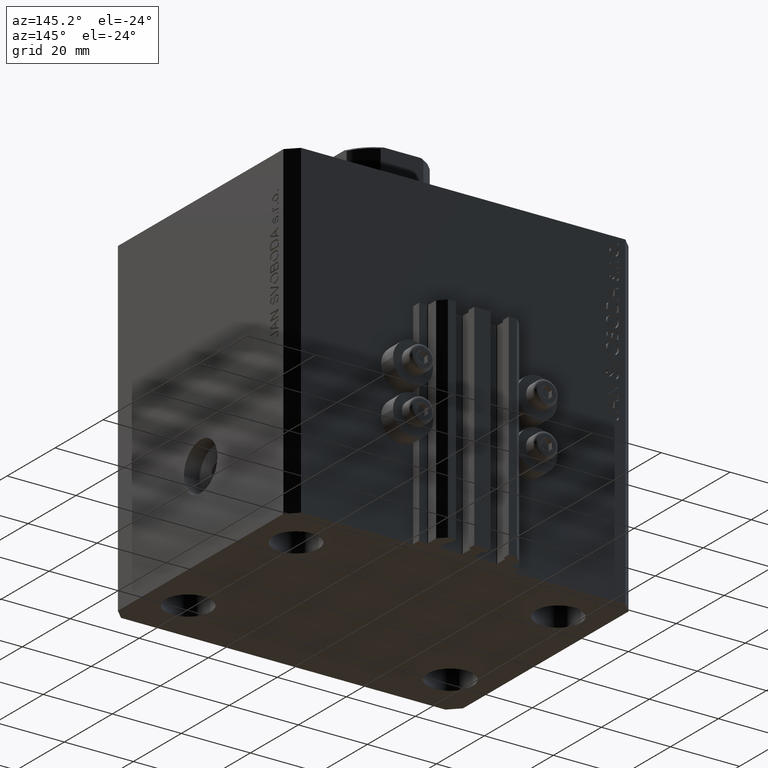
[diagram: clean part render]
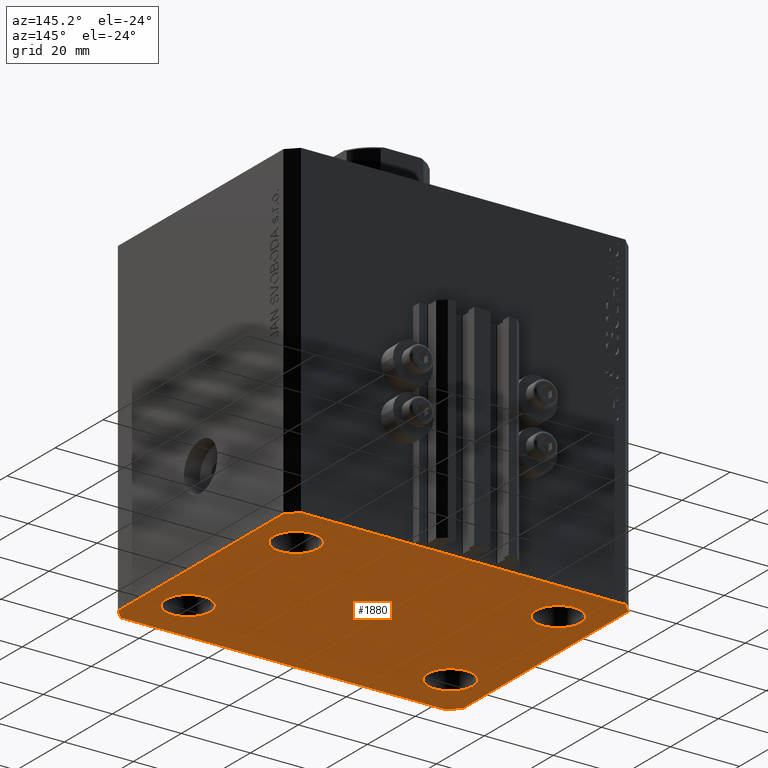
[diagram: same view with one face highlighted and labeled with its STEP entity id]
A machine part, auxiliary view. The second image highlights one B-rep face of the part: STEP entity #1880.
In plain terms, the highlighted planar face has unit normal (0, 0, 1).
Its self-contained STEP definition (entity closure, byte-faithful):
#277 = VERTEX_POINT ( 'NONE', #5666 ) ;
#306 = FACE_OUTER_BOUND ( 'NONE', #1822, .T. ) ;
#385 = ORIENTED_EDGE ( 'NONE', *, *, #19222, .F. ) ;
#866 = CARTESIAN_POINT ( 'NONE',  ( 31.49999999999999289, -22.50000000000000000, -95.00000000000000000 ) ) ;
#1362 = EDGE_CURVE ( 'NONE', #11967, #33250, #37895, .T. ) ;
#1516 = LINE ( 'NONE', #45219, #36819 ) ;
#1822 = EDGE_LOOP ( 'NONE', ( #35923, #30641, #385, #27761, #28299, #11859, #18577, #31644 ) ) ;
#1880 = ADVANCED_FACE ( 'NONE', ( #40639, #22488, #36366, #3647, #306 ), #18205, .F. ) ;
#2292 = EDGE_CURVE ( 'NONE', #8838, #34498, #10611, .T. ) ;
#2366 = CARTESIAN_POINT ( 'NONE',  ( 50.00000000000051870, 34.49999999999995026, -95.00000000000000000 ) ) ;
#2794 = VERTEX_POINT ( 'NONE', #44704 ) ;
#2886 = CARTESIAN_POINT ( 'NONE',  ( -37.99999999999999289, -22.50000000000000000, -95.00000000000000000 ) ) ;
#2992 = DIRECTION ( 'NONE',  ( -0.7071067811865483499, -0.7071067811865466846, 0.000000000000000000 ) ) ;
#3039 = DIRECTION ( 'NONE',  ( -0.000000000000000000, -0.000000000000000000, -1.000000000000000000 ) ) ;
#3048 = CIRCLE ( 'NONE', #25921, 6.499999999999999112 ) ;
#3288 = CARTESIAN_POINT ( 'NONE',  ( -38.00000000000000000, 22.49999999999999645, -95.00000000000000000 ) ) ;
#3647 = FACE_BOUND ( 'NONE', #22564, .T. ) ;
#5492 = CARTESIAN_POINT ( 'NONE',  ( 47.00000000000056843, 37.49999999999999289, -95.00000000000000000 ) ) ;
#5666 = CARTESIAN_POINT ( 'NONE',  ( 47.00000000000056843, 37.49999999999999289, -95.00000000000000000 ) ) ;
#5915 = DIRECTION ( 'NONE',  ( 1.000000000000000000, 0.000000000000000000, 0.000000000000000000 ) ) ;
#6106 = DIRECTION ( 'NONE',  ( 1.000000000000000000, -1.476360405086644309E-16, 0.000000000000000000 ) ) ;
#6157 = CIRCLE ( 'NONE', #11452, 6.499999999999999112 ) ;
#7520 = CARTESIAN_POINT ( 'NONE',  ( 44.50000000000000000, 22.49999999999998934, -95.00000000000000000 ) ) ;
#7729 = EDGE_CURVE ( 'NONE', #27242, #32108, #43282, .T. ) ;
#8126 = VECTOR ( 'NONE', #31029, 1000.000000000000000 ) ;
#8647 = DIRECTION ( 'NONE',  ( 2.011273595335428326E-16, -1.000000000000000000, 0.000000000000000000 ) ) ;
#8838 = VERTEX_POINT ( 'NONE', #39987 ) ;
#9110 = AXIS2_PLACEMENT_3D ( 'NONE', #14108, #43254, #31807 ) ;
#9820 = CIRCLE ( 'NONE', #28253, 6.499999999999999112 ) ;
#9927 = LINE ( 'NONE', #39773, #10779 ) ;
#10207 = DIRECTION ( 'NONE',  ( -0.000000000000000000, -0.000000000000000000, -1.000000000000000000 ) ) ;
#10383 = DIRECTION ( 'NONE',  ( -0.7071067811865361374, 0.7071067811865588970, 0.000000000000000000 ) ) ;
#10611 = LINE ( 'NONE', #31659, #40047 ) ;
#10640 = CARTESIAN_POINT ( 'NONE',  ( 47.00000000000000000, -37.50000000000000711, -95.00000000000000000 ) ) ;
#10779 = VECTOR ( 'NONE', #10383, 1000.000000000000114 ) ;
#10818 = VERTEX_POINT ( 'NONE', #10640 ) ;
#11091 = EDGE_CURVE ( 'NONE', #32108, #27242, #9820, .T. ) ;
#11452 = AXIS2_PLACEMENT_3D ( 'NONE', #13557, #10207, #21202 ) ;
#11859 = ORIENTED_EDGE ( 'NONE', *, *, #1362, .F. ) ;
#11967 = VERTEX_POINT ( 'NONE', #13478 ) ;
#12185 = CARTESIAN_POINT ( 'NONE',  ( -38.00000000000000000, 22.49999999999999645, -95.00000000000000000 ) ) ;
#12606 = AXIS2_PLACEMENT_3D ( 'NONE', #14849, #32777, #18677 ) ;
#13478 = CARTESIAN_POINT ( 'NONE',  ( -50.00000000000000000, -34.50000000000000000, -95.00000000000000000 ) ) ;
#13515 = VERTEX_POINT ( 'NONE', #7520 ) ;
#13557 = CARTESIAN_POINT ( 'NONE',  ( 37.99999999999999289, -22.50000000000000000, -95.00000000000000000 ) ) ;
#13565 = ORIENTED_EDGE ( 'NONE', *, *, #7729, .F. ) ;
#13768 = VERTEX_POINT ( 'NONE', #24339 ) ;
#14108 = CARTESIAN_POINT ( 'NONE',  ( 38.00000000000000000, 22.49999999999998934, -95.00000000000000000 ) ) ;
#14332 = VERTEX_POINT ( 'NONE', #20652 ) ;
#14849 = CARTESIAN_POINT ( 'NONE',  ( 0.000000000000000000, 0.000000000000000000, -95.00000000000000000 ) ) ;
#14938 = VERTEX_POINT ( 'NONE', #2366 ) ;
#15042 = EDGE_CURVE ( 'NONE', #27134, #36399, #6157, .T. ) ;
#15066 = DIRECTION ( 'NONE',  ( 1.000000000000000000, 0.000000000000000000, 0.000000000000000000 ) ) ;
#15539 = DIRECTION ( 'NONE',  ( -0.000000000000000000, -0.000000000000000000, -1.000000000000000000 ) ) ;
#15897 = ORIENTED_EDGE ( 'NONE', *, *, #11091, .F. ) ;
#16186 = EDGE_LOOP ( 'NONE', ( #37998, #23416 ) ) ;
#17227 = CARTESIAN_POINT ( 'NONE',  ( -50.00000000000001421, 34.50000000000000000, -95.00000000000000000 ) ) ;
#17301 = ORIENTED_EDGE ( 'NONE', *, *, #25370, .F. ) ;
#17898 = VECTOR ( 'NONE', #19499, 1000.000000000000114 ) ;
#18205 = PLANE ( 'NONE',  #12606 ) ;
#18526 = CARTESIAN_POINT ( 'NONE',  ( 47.00000000000000000, -37.50000000000000711, -95.00000000000000000 ) ) ;
#18577 = ORIENTED_EDGE ( 'NONE', *, *, #34326, .F. ) ;
#18677 = DIRECTION ( 'NONE',  ( 1.000000000000000000, 0.000000000000000000, -0.000000000000000000 ) ) ;
#18783 = CARTESIAN_POINT ( 'NONE',  ( -44.50000000000000000, 22.49999999999999645, -95.00000000000000000 ) ) ;
#19146 = AXIS2_PLACEMENT_3D ( 'NONE', #20215, #34794, #31198 ) ;
#19222 = EDGE_CURVE ( 'NONE', #14332, #14938, #1516, .T. ) ;
#19499 = DIRECTION ( 'NONE',  ( 0.7071067811865491270, -0.7071067811865459074, 0.000000000000000000 ) ) ;
#19813 = LINE ( 'NONE', #5492, #8126 ) ;
#20215 = CARTESIAN_POINT ( 'NONE',  ( 38.00000000000000000, 22.49999999999998934, -95.00000000000000000 ) ) ;
#20652 = CARTESIAN_POINT ( 'NONE',  ( 50.00000000000000000, -34.50000000000000711, -95.00000000000000000 ) ) ;
#20720 = VECTOR ( 'NONE', #33095, 1000.000000000000000 ) ;
#20914 = EDGE_LOOP ( 'NONE', ( #17301, #30017 ) ) ;
#21031 = DIRECTION ( 'NONE',  ( -0.000000000000000000, -0.000000000000000000, -1.000000000000000000 ) ) ;
#21202 = DIRECTION ( 'NONE',  ( 1.000000000000000000, 0.000000000000000000, 0.000000000000000000 ) ) ;
#21958 = AXIS2_PLACEMENT_3D ( 'NONE', #3288, #3039, #24549 ) ;
#22003 = EDGE_CURVE ( 'NONE', #36399, #27134, #3048, .T. ) ;
#22337 = LINE ( 'NONE', #18526, #20720 ) ;
#22488 = FACE_BOUND ( 'NONE', #26289, .T. ) ;
#22564 = EDGE_LOOP ( 'NONE', ( #15897, #13565 ) ) ;
#22889 = EDGE_CURVE ( 'NONE', #2794, #24659, #36648, .T. ) ;
#23227 = LINE ( 'NONE', #41834, #27269 ) ;
#23416 = ORIENTED_EDGE ( 'NONE', *, *, #33401, .F. ) ;
#23618 = VECTOR ( 'NONE', #6106, 1000.000000000000000 ) ;
#24339 = CARTESIAN_POINT ( 'NONE',  ( 31.50000000000000000, 22.49999999999998934, -95.00000000000000000 ) ) ;
#24501 = LINE ( 'NONE', #34787, #23618 ) ;
#24539 = CARTESIAN_POINT ( 'NONE',  ( 37.99999999999999289, -22.50000000000000000, -95.00000000000000000 ) ) ;
#24549 = DIRECTION ( 'NONE',  ( 1.000000000000000000, 0.000000000000000000, 0.000000000000000000 ) ) ;
#24659 = VERTEX_POINT ( 'NONE', #34024 ) ;
#25370 = EDGE_CURVE ( 'NONE', #13515, #13768, #32901, .T. ) ;
#25921 = AXIS2_PLACEMENT_3D ( 'NONE', #24539, #41736, #39093 ) ;
#26101 = ORIENTED_EDGE ( 'NONE', *, *, #22003, .F. ) ;
#26277 = EDGE_CURVE ( 'NONE', #14938, #277, #9927, .T. ) ;
#26289 = EDGE_LOOP ( 'NONE', ( #39535, #26101 ) ) ;
#26360 = EDGE_CURVE ( 'NONE', #10818, #14332, #22337, .T. ) ;
#27061 = DIRECTION ( 'NONE',  ( 7.441712302741091634E-15, 1.000000000000000000, 0.000000000000000000 ) ) ;
#27134 = VERTEX_POINT ( 'NONE', #32187 ) ;
#27242 = VERTEX_POINT ( 'NONE', #18783 ) ;
#27269 = VECTOR ( 'NONE', #8647, 1000.000000000000000 ) ;
#27761 = ORIENTED_EDGE ( 'NONE', *, *, #26360, .F. ) ;
#27835 = CARTESIAN_POINT ( 'NONE',  ( -50.00000000000000000, -34.50000000000000000, -95.00000000000000000 ) ) ;
#28253 = AXIS2_PLACEMENT_3D ( 'NONE', #12185, #15539, #15066 ) ;
#28299 = ORIENTED_EDGE ( 'NONE', *, *, #40827, .F. ) ;
#29725 = CIRCLE ( 'NONE', #9110, 6.499999999999999112 ) ;
#30017 = ORIENTED_EDGE ( 'NONE', *, *, #44701, .F. ) ;
#30641 = ORIENTED_EDGE ( 'NONE', *, *, #26277, .F. ) ;
#31029 = DIRECTION ( 'NONE',  ( -1.000000000000000000, 7.381802025433175941E-17, 0.000000000000000000 ) ) ;
#31198 = DIRECTION ( 'NONE',  ( 1.000000000000000000, 0.000000000000000000, 0.000000000000000000 ) ) ;
#31234 = DIRECTION ( 'NONE',  ( -0.000000000000000000, -0.000000000000000000, -1.000000000000000000 ) ) ;
#31644 = ORIENTED_EDGE ( 'NONE', *, *, #2292, .F. ) ;
#31659 = CARTESIAN_POINT ( 'NONE',  ( -47.00000000000001421, 37.50000000000000000, -95.00000000000000000 ) ) ;
#31807 = DIRECTION ( 'NONE',  ( 1.000000000000000000, 0.000000000000000000, 0.000000000000000000 ) ) ;
#32108 = VERTEX_POINT ( 'NONE', #43764 ) ;
#32187 = CARTESIAN_POINT ( 'NONE',  ( 44.49999999999999289, -22.50000000000000000, -95.00000000000000000 ) ) ;
#32730 = CARTESIAN_POINT ( 'NONE',  ( -47.00000000000000000, -37.49999999999999289, -95.00000000000000000 ) ) ;
#32777 = DIRECTION ( 'NONE',  ( 0.000000000000000000, 0.000000000000000000, 1.000000000000000000 ) ) ;
#32901 = CIRCLE ( 'NONE', #19146, 6.499999999999999112 ) ;
#32983 = DIRECTION ( 'NONE',  ( 1.000000000000000000, 0.000000000000000000, 0.000000000000000000 ) ) ;
#33095 = DIRECTION ( 'NONE',  ( 0.7071067811865483499, 0.7071067811865466846, 0.000000000000000000 ) ) ;
#33250 = VERTEX_POINT ( 'NONE', #32730 ) ;
#33401 = EDGE_CURVE ( 'NONE', #24659, #2794, #40928, .T. ) ;
#33553 = EDGE_CURVE ( 'NONE', #277, #8838, #19813, .T. ) ;
#34024 = CARTESIAN_POINT ( 'NONE',  ( -44.49999999999999289, -22.50000000000000000, -95.00000000000000000 ) ) ;
#34101 = AXIS2_PLACEMENT_3D ( 'NONE', #2886, #21031, #32983 ) ;
#34326 = EDGE_CURVE ( 'NONE', #34498, #11967, #23227, .T. ) ;
#34498 = VERTEX_POINT ( 'NONE', #17227 ) ;
#34787 = CARTESIAN_POINT ( 'NONE',  ( -47.00000000000000000, -37.49999999999999289, -95.00000000000000000 ) ) ;
#34794 = DIRECTION ( 'NONE',  ( -0.000000000000000000, -0.000000000000000000, -1.000000000000000000 ) ) ;
#35923 = ORIENTED_EDGE ( 'NONE', *, *, #33553, .F. ) ;
#36366 = FACE_BOUND ( 'NONE', #20914, .T. ) ;
#36399 = VERTEX_POINT ( 'NONE', #866 ) ;
#36648 = CIRCLE ( 'NONE', #40445, 6.499999999999999112 ) ;
#36819 = VECTOR ( 'NONE', #27061, 1000.000000000000000 ) ;
#37895 = LINE ( 'NONE', #27835, #17898 ) ;
#37998 = ORIENTED_EDGE ( 'NONE', *, *, #22889, .F. ) ;
#39093 = DIRECTION ( 'NONE',  ( 1.000000000000000000, 0.000000000000000000, 0.000000000000000000 ) ) ;
#39535 = ORIENTED_EDGE ( 'NONE', *, *, #15042, .F. ) ;
#39773 = CARTESIAN_POINT ( 'NONE',  ( 50.00000000000051870, 34.49999999999995026, -95.00000000000000000 ) ) ;
#39987 = CARTESIAN_POINT ( 'NONE',  ( -47.00000000000001421, 37.50000000000000000, -95.00000000000000000 ) ) ;
#40047 = VECTOR ( 'NONE', #2992, 1000.000000000000000 ) ;
#40445 = AXIS2_PLACEMENT_3D ( 'NONE', #42216, #31234, #5915 ) ;
#40639 = FACE_BOUND ( 'NONE', #16186, .T. ) ;
#40827 = EDGE_CURVE ( 'NONE', #33250, #10818, #24501, .T. ) ;
#40928 = CIRCLE ( 'NONE', #34101, 6.499999999999999112 ) ;
#41736 = DIRECTION ( 'NONE',  ( -0.000000000000000000, -0.000000000000000000, -1.000000000000000000 ) ) ;
#41834 = CARTESIAN_POINT ( 'NONE',  ( -50.00000000000001421, 34.50000000000000000, -95.00000000000000000 ) ) ;
#42216 = CARTESIAN_POINT ( 'NONE',  ( -37.99999999999999289, -22.50000000000000000, -95.00000000000000000 ) ) ;
#43254 = DIRECTION ( 'NONE',  ( -0.000000000000000000, -0.000000000000000000, -1.000000000000000000 ) ) ;
#43282 = CIRCLE ( 'NONE', #21958, 6.499999999999999112 ) ;
#43764 = CARTESIAN_POINT ( 'NONE',  ( -31.50000000000000000, 22.49999999999999645, -95.00000000000000000 ) ) ;
#44701 = EDGE_CURVE ( 'NONE', #13768, #13515, #29725, .T. ) ;
#44704 = CARTESIAN_POINT ( 'NONE',  ( -31.49999999999999289, -22.50000000000000000, -95.00000000000000000 ) ) ;
#45219 = CARTESIAN_POINT ( 'NONE',  ( 50.00000000000000000, -34.50000000000000711, -95.00000000000000000 ) ) ;